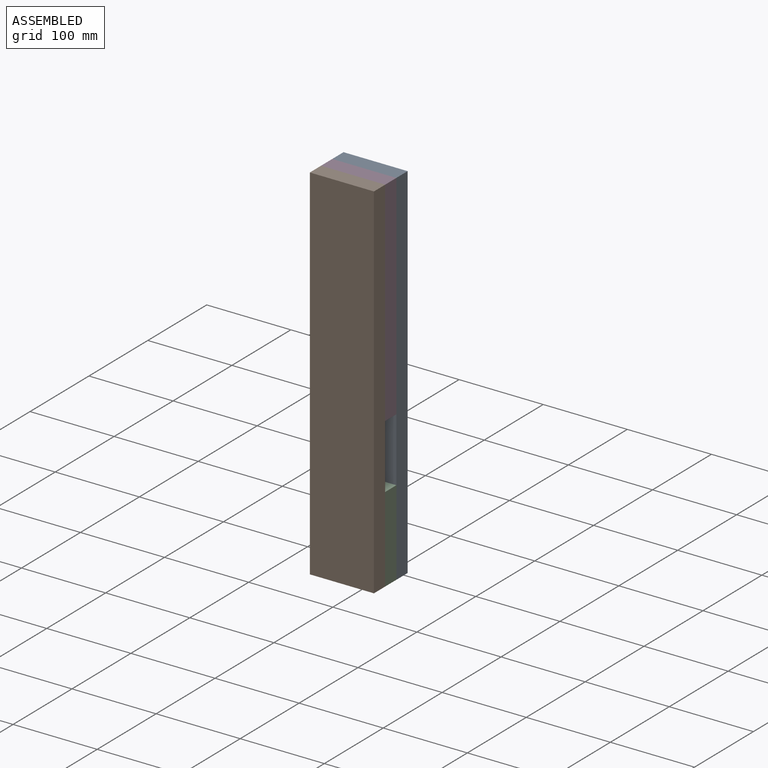
[diagram: assembled view]
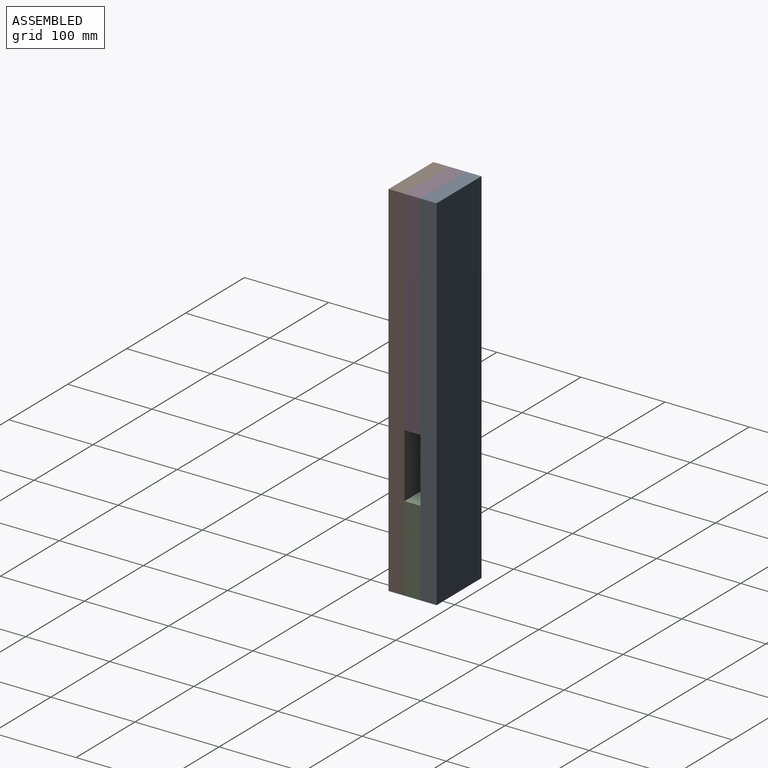
[diagram: assembled view, second angle]
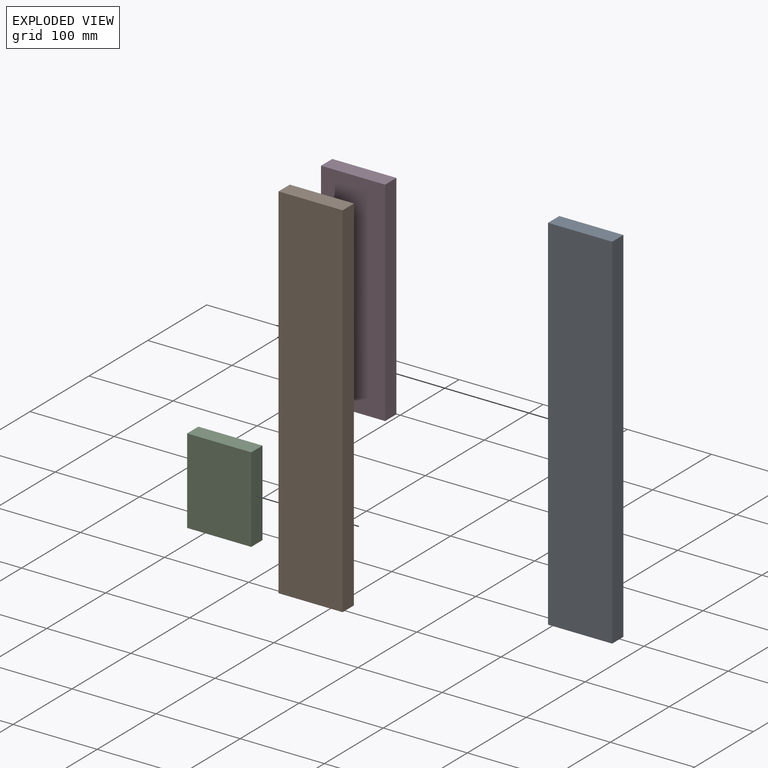
[diagram: exploded view]
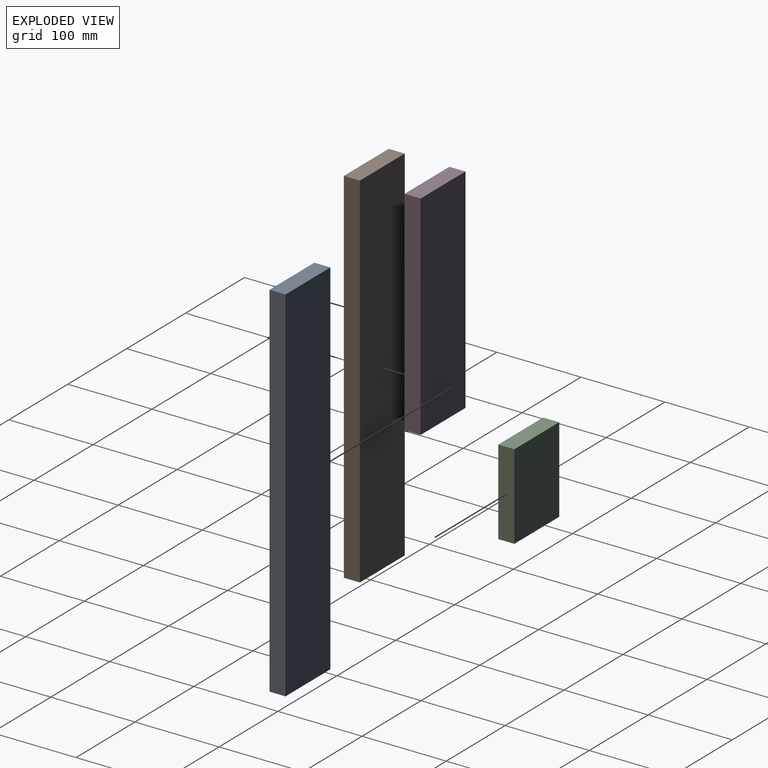
[diagram: exploded view, second angle]
ASSEMBLY  parts=4 mates=9
PART A: 6 faces, bbox 76.2x19.1x431.8 mm
  f0: plane 431.8x19.05mm, normal (-1,0,0), area 8225.8mm2, adj f1,f3,f4,f5
  f1: plane 76.2x19.05mm, normal (0,0,-1), area 1451.6mm2, adj f0,f2,f4,f5
  f2: plane 431.8x19.05mm, normal (1,0,0), area 8225.8mm2, adj f1,f3,f4,f5
  f3: plane 76.2x19.05mm, normal (0,0,1), area 1451.6mm2, adj f0,f2,f4,f5
  f4: plane 431.8x76.2mm, normal (0,-1,0), area 32903.2mm2, adj f0,f1,f2,f3
  f5: plane 431.8x76.2mm, normal (0,1,0), area 32903.2mm2, adj f0,f1,f2,f3
PART B: 6 faces, bbox 76.2x19.1x431.8 mm
  f0: plane 431.8x19.05mm, normal (-1,0,0), area 8225.8mm2, adj f1,f3,f4,f5
  f1: plane 76.2x19.05mm, normal (0,0,-1), area 1451.6mm2, adj f0,f2,f4,f5
  f2: plane 431.8x19.05mm, normal (1,0,0), area 8225.8mm2, adj f1,f3,f4,f5
  f3: plane 76.2x19.05mm, normal (0,0,1), area 1451.6mm2, adj f0,f2,f4,f5
  f4: plane 431.8x76.2mm, normal (0,-1,0), area 32903.2mm2, adj f0,f1,f2,f3
  f5: plane 431.8x76.2mm, normal (0,1,0), area 32903.2mm2, adj f0,f1,f2,f3
PART C: 6 faces, bbox 76.2x19.1x101.6 mm
  f0: plane 76.2x19.05mm, normal (0,0,-1), area 1451.6mm2, adj f1,f2,f3,f4
  f1: plane 101.6x76.2mm, normal (0,-1,0), area 7741.9mm2, adj f0,f3,f4,f5
  f2: plane 101.6x76.2mm, normal (0,1,0), area 7741.9mm2, adj f0,f3,f4,f5
  f3: plane 101.6x19.05mm, normal (1,0,0), area 1935.5mm2, adj f0,f1,f2,f5
  f4: plane 101.6x19.05mm, normal (-1,0,0), area 1935.5mm2, adj f0,f1,f2,f5
  f5: plane 76.2x19.05mm, normal (0,0,1), area 1451.6mm2, adj f1,f2,f3,f4
PART D: 6 faces, bbox 76.2x19.1x254 mm
  f0: plane 254x19.05mm, normal (-1,0,0), area 4838.7mm2, adj f2,f3,f4,f5
  f1: plane 254x19.05mm, normal (1,0,0), area 4838.7mm2, adj f2,f3,f4,f5
  f2: plane 254x76.2mm, normal (0,-1,0), area 19354.8mm2, adj f0,f1,f4,f5
  f3: plane 254x76.2mm, normal (0,1,0), area 19354.8mm2, adj f0,f1,f4,f5
  f4: plane 76.2x19.05mm, normal (0,0,1), area 1451.6mm2, adj f0,f1,f2,f3
  f5: plane 76.2x19.05mm, normal (0,0,-1), area 1451.6mm2, adj f0,f1,f2,f3
PLACE A t=(146.59,-5.51,82.8)mm
PLACE B t=(26.36,-43.61,82.8)mm
PLACE C t=(-202.25,-24.56,82.8)mm
PLACE D t=(-202.25,-24.56,82.8)mm
MATE planar C.f1 <-> B.f5  axis (0,-1,0) through (184.69,-43.61,133.6)mm
MATE planar B.f3 <-> D.f4  axis (0,0,1) through (184.69,-53.14,514.6)mm
MATE planar B.f5 <-> D.f2  axis (0,1,0) through (146.59,-43.61,514.6)mm
MATE planar A.f2 <-> C.f3  axis (1,0,0) through (222.79,-15.04,298.7)mm
MATE planar B.f1 <-> C.f0  axis (0,0,-1) through (184.69,-53.14,82.8)mm
MATE planar C.f0 <-> A.f1  axis (0,0,-1) through (184.69,-34.09,82.8)mm
MATE planar A.f4 <-> C.f2  axis (0,-1,0) through (184.69,-24.56,298.7)mm
MATE planar A.f0 <-> D.f0  axis (-1,0,0) through (146.59,-15.04,298.7)mm
MATE planar B.f2 <-> C.f3  axis (1,0,0) through (222.79,-53.14,298.7)mm
